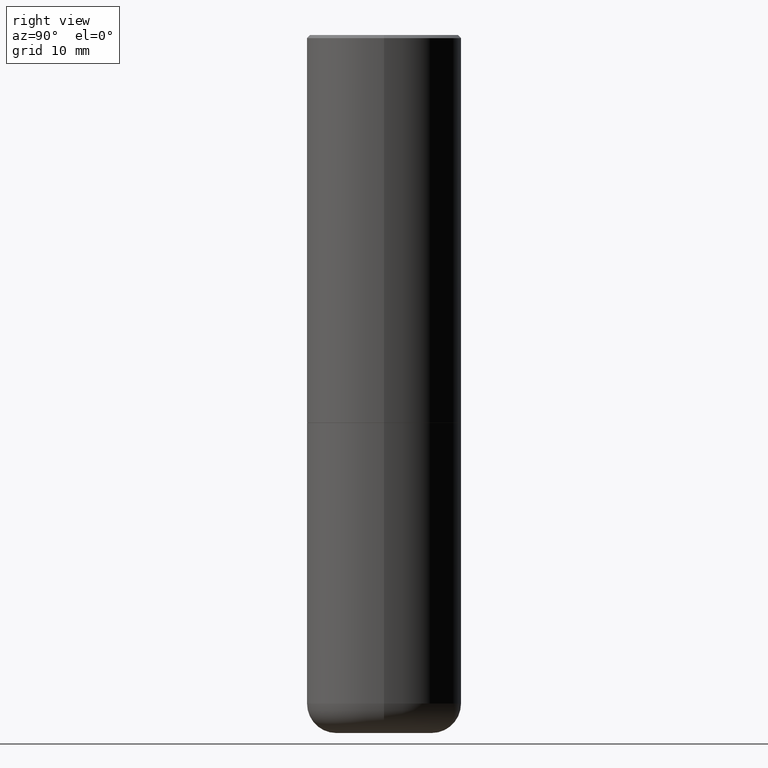
[diagram: clean part render]
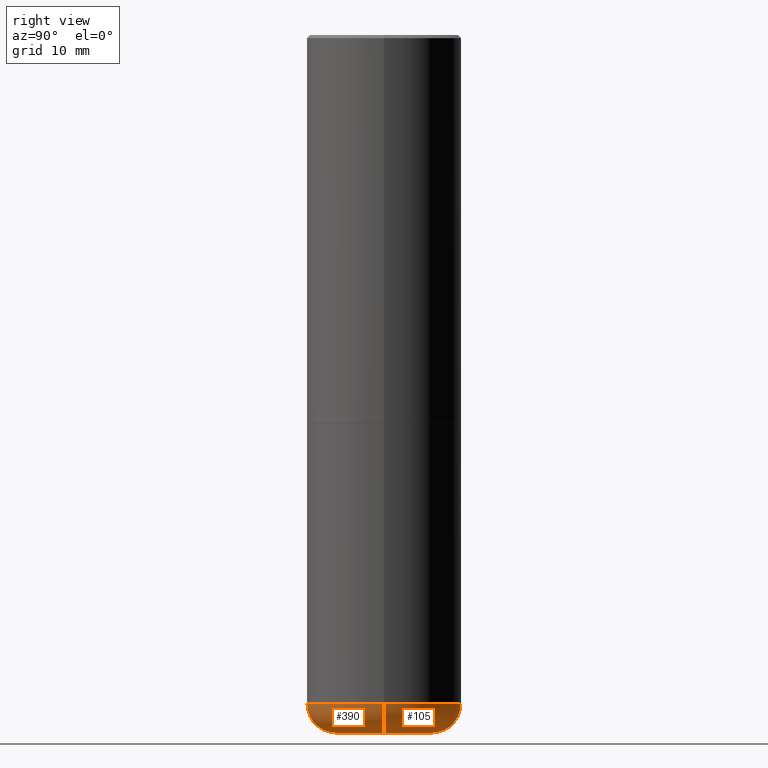
[diagram: same view with one multi-face feature highlighted, each face labeled with its STEP entity id]
A machine part, right view. The highlighted faces form ONE feature: a constant-radius fillet chain: 2 tangent blend faces with common blend radius 4.826 mm. The faces share edges in the B-rep.
Their STEP definitions:
[1] entity #105 (Torus):
#9 = CARTESIAN_POINT ( 'NONE',  ( -0.3099999999999999978, -1.250227721777565265E-14, -4.499999999999999112 ) ) ;
#36 = CARTESIAN_POINT ( 'NONE',  ( 1.100460962783311244E-28, -1.571166602479415374E-14, -4.499999999999999112 ) ) ;
#40 = ORIENTED_EDGE ( 'NONE', *, *, #408, .F. ) ;
#57 = CARTESIAN_POINT ( 'NONE',  ( 0.3099999999999999978, -1.787638445487689705E-14, -4.499999999999999112 ) ) ;
#67 = VERTEX_POINT ( 'NONE', #103 ) ;
#76 = DIRECTION ( 'NONE',  ( -6.982962677686266711E-15, -1.000000000000000000, 3.491481338843145583E-15 ) ) ;
#78 = EDGE_CURVE ( 'NONE', #224, #67, #382, .T. ) ;
#81 = DIRECTION ( 'NONE',  ( -2.445468806185136597E-29, 3.491481338843145583E-15, 1.000000000000000000 ) ) ;
#83 = DIRECTION ( 'NONE',  ( -2.445468806185136597E-29, 3.491481338843145583E-15, 1.000000000000000000 ) ) ;
#95 = ORIENTED_EDGE ( 'NONE', *, *, #146, .F. ) ;
#96 = DIRECTION ( 'NONE',  ( 1.000000000000000000, -6.982962677686273810E-15, 0.000000000000000000 ) ) ;
#103 = CARTESIAN_POINT ( 'NONE',  ( -0.4999999999999998335, -1.149557089161345937E-14, -4.310000000000000497 ) ) ;
#105 = ADVANCED_FACE ( 'NONE', ( #109 ), #269, .T. ) ;
#109 = FACE_OUTER_BOUND ( 'NONE', #306, .T. ) ;
#129 = DIRECTION ( 'NONE',  ( 1.000000000000000000, -6.982962677686263555E-15, 0.000000000000000000 ) ) ;
#146 = EDGE_CURVE ( 'NONE', #245, #67, #395, .T. ) ;
#152 = AXIS2_PLACEMENT_3D ( 'NONE', #36, #212, #129 ) ;
#171 = AXIS2_PLACEMENT_3D ( 'NONE', #326, #83, #188 ) ;
#179 = CIRCLE ( 'NONE', #348, 0.1899999999999996692 ) ;
#188 = DIRECTION ( 'NONE',  ( 1.000000000000000000, -6.982962677686267499E-15, 4.883557194083114022E-29 ) ) ;
#212 = DIRECTION ( 'NONE',  ( -2.445468806185136597E-29, 3.491481338843145583E-15, 1.000000000000000000 ) ) ;
#214 = CARTESIAN_POINT ( 'NONE',  ( 0.3099999999999999978, -1.721300300049670045E-14, -4.310000000000000497 ) ) ;
#221 = DIRECTION ( 'NONE',  ( -1.000000000000000000, 7.105427357600999492E-15, 0.000000000000000000 ) ) ;
#224 = VERTEX_POINT ( 'NONE', #9 ) ;
#226 = CARTESIAN_POINT ( 'NONE',  ( 1.053997055465793981E-28, -1.504828457041396030E-14, -4.310000000000000497 ) ) ;
#238 = CIRCLE ( 'NONE', #152, 0.3099999999999999978 ) ;
#244 = VERTEX_POINT ( 'NONE', #57 ) ;
#245 = VERTEX_POINT ( 'NONE', #282 ) ;
#269 = TOROIDAL_SURFACE ( 'NONE', #171, 0.3099999999999999978, 0.1899999999999996692 ) ;
#279 = ORIENTED_EDGE ( 'NONE', *, *, #412, .T. ) ;
#282 = CARTESIAN_POINT ( 'NONE',  ( 0.4999999999999998335, -1.853976590925709365E-14, -4.310000000000000497 ) ) ;
#287 = CARTESIAN_POINT ( 'NONE',  ( -0.3099999999999999978, -1.284560208955764776E-14, -4.310000000000000497 ) ) ;
#306 = EDGE_LOOP ( 'NONE', ( #279, #389, #95, #40 ) ) ;
#326 = CARTESIAN_POINT ( 'NONE',  ( 1.053997055465793981E-28, -1.504828457041396030E-14, -4.310000000000000497 ) ) ;
#328 = DIRECTION ( 'NONE',  ( 1.000000000000000000, -6.982962677686270655E-15, 0.000000000000000000 ) ) ;
#348 = AXIS2_PLACEMENT_3D ( 'NONE', #214, #76, #96 ) ;
#382 = CIRCLE ( 'NONE', #402, 0.1899999999999996692 ) ;
#389 = ORIENTED_EDGE ( 'NONE', *, *, #78, .T. ) ;
#395 = CIRCLE ( 'NONE', #406, 0.5000000000000000000 ) ;
#396 = DIRECTION ( 'NONE',  ( 7.105427357601001859E-15, 1.000000000000000000, -3.491481338843145583E-15 ) ) ;
#402 = AXIS2_PLACEMENT_3D ( 'NONE', #287, #396, #221 ) ;
#406 = AXIS2_PLACEMENT_3D ( 'NONE', #226, #81, #328 ) ;
#408 = EDGE_CURVE ( 'NONE', #244, #245, #179, .T. ) ;
#412 = EDGE_CURVE ( 'NONE', #244, #224, #238, .T. ) ;
[2] entity #390 (Torus):
#2 = CIRCLE ( 'NONE', #234, 0.3099999999999999978 ) ;
#9 = CARTESIAN_POINT ( 'NONE',  ( -0.3099999999999999978, -1.250227721777565265E-14, -4.499999999999999112 ) ) ;
#57 = CARTESIAN_POINT ( 'NONE',  ( 0.3099999999999999978, -1.787638445487689705E-14, -4.499999999999999112 ) ) ;
#67 = VERTEX_POINT ( 'NONE', #103 ) ;
#76 = DIRECTION ( 'NONE',  ( -6.982962677686266711E-15, -1.000000000000000000, 3.491481338843145583E-15 ) ) ;
#78 = EDGE_CURVE ( 'NONE', #224, #67, #382, .T. ) ;
#79 = CARTESIAN_POINT ( 'NONE',  ( 1.053997055465793981E-28, -1.504828457041396030E-14, -4.310000000000000497 ) ) ;
#82 = DIRECTION ( 'NONE',  ( -2.445468806185136597E-29, 3.491481338843145583E-15, 1.000000000000000000 ) ) ;
#96 = DIRECTION ( 'NONE',  ( 1.000000000000000000, -6.982962677686273810E-15, 0.000000000000000000 ) ) ;
#99 = ORIENTED_EDGE ( 'NONE', *, *, #298, .F. ) ;
#103 = CARTESIAN_POINT ( 'NONE',  ( -0.4999999999999998335, -1.149557089161345937E-14, -4.310000000000000497 ) ) ;
#116 = FACE_OUTER_BOUND ( 'NONE', #371, .T. ) ;
#120 = CIRCLE ( 'NONE', #141, 0.5000000000000000000 ) ;
#133 = ORIENTED_EDGE ( 'NONE', *, *, #78, .F. ) ;
#141 = AXIS2_PLACEMENT_3D ( 'NONE', #79, #82, #292 ) ;
#179 = CIRCLE ( 'NONE', #348, 0.1899999999999996692 ) ;
#190 = TOROIDAL_SURFACE ( 'NONE', #309, 0.3099999999999999978, 0.1899999999999996692 ) ;
#205 = CARTESIAN_POINT ( 'NONE',  ( 1.053997055465793981E-28, -1.504828457041396030E-14, -4.310000000000000497 ) ) ;
#214 = CARTESIAN_POINT ( 'NONE',  ( 0.3099999999999999978, -1.721300300049670045E-14, -4.310000000000000497 ) ) ;
#221 = DIRECTION ( 'NONE',  ( -1.000000000000000000, 7.105427357600999492E-15, 0.000000000000000000 ) ) ;
#224 = VERTEX_POINT ( 'NONE', #9 ) ;
#234 = AXIS2_PLACEMENT_3D ( 'NONE', #247, #349, #252 ) ;
#244 = VERTEX_POINT ( 'NONE', #57 ) ;
#245 = VERTEX_POINT ( 'NONE', #282 ) ;
#247 = CARTESIAN_POINT ( 'NONE',  ( 1.100460962783311244E-28, -1.571166602479415374E-14, -4.499999999999999112 ) ) ;
#252 = DIRECTION ( 'NONE',  ( 1.000000000000000000, -6.982962677686263555E-15, 0.000000000000000000 ) ) ;
#255 = ORIENTED_EDGE ( 'NONE', *, *, #408, .T. ) ;
#267 = EDGE_CURVE ( 'NONE', #224, #244, #2, .T. ) ;
#277 = ORIENTED_EDGE ( 'NONE', *, *, #267, .T. ) ;
#282 = CARTESIAN_POINT ( 'NONE',  ( 0.4999999999999998335, -1.853976590925709365E-14, -4.310000000000000497 ) ) ;
#287 = CARTESIAN_POINT ( 'NONE',  ( -0.3099999999999999978, -1.284560208955764776E-14, -4.310000000000000497 ) ) ;
#292 = DIRECTION ( 'NONE',  ( 1.000000000000000000, -6.982962677686270655E-15, 0.000000000000000000 ) ) ;
#298 = EDGE_CURVE ( 'NONE', #67, #245, #120, .T. ) ;
#309 = AXIS2_PLACEMENT_3D ( 'NONE', #205, #341, #410 ) ;
#341 = DIRECTION ( 'NONE',  ( -2.445468806185136597E-29, 3.491481338843145583E-15, 1.000000000000000000 ) ) ;
#348 = AXIS2_PLACEMENT_3D ( 'NONE', #214, #76, #96 ) ;
#349 = DIRECTION ( 'NONE',  ( -2.445468806185136597E-29, 3.491481338843145583E-15, 1.000000000000000000 ) ) ;
#371 = EDGE_LOOP ( 'NONE', ( #133, #277, #255, #99 ) ) ;
#382 = CIRCLE ( 'NONE', #402, 0.1899999999999996692 ) ;
#390 = ADVANCED_FACE ( 'NONE', ( #116 ), #190, .T. ) ;
#396 = DIRECTION ( 'NONE',  ( 7.105427357601001859E-15, 1.000000000000000000, -3.491481338843145583E-15 ) ) ;
#402 = AXIS2_PLACEMENT_3D ( 'NONE', #287, #396, #221 ) ;
#408 = EDGE_CURVE ( 'NONE', #244, #245, #179, .T. ) ;
#410 = DIRECTION ( 'NONE',  ( 1.000000000000000000, -6.982962677686267499E-15, 4.883557194083114022E-29 ) ) ;